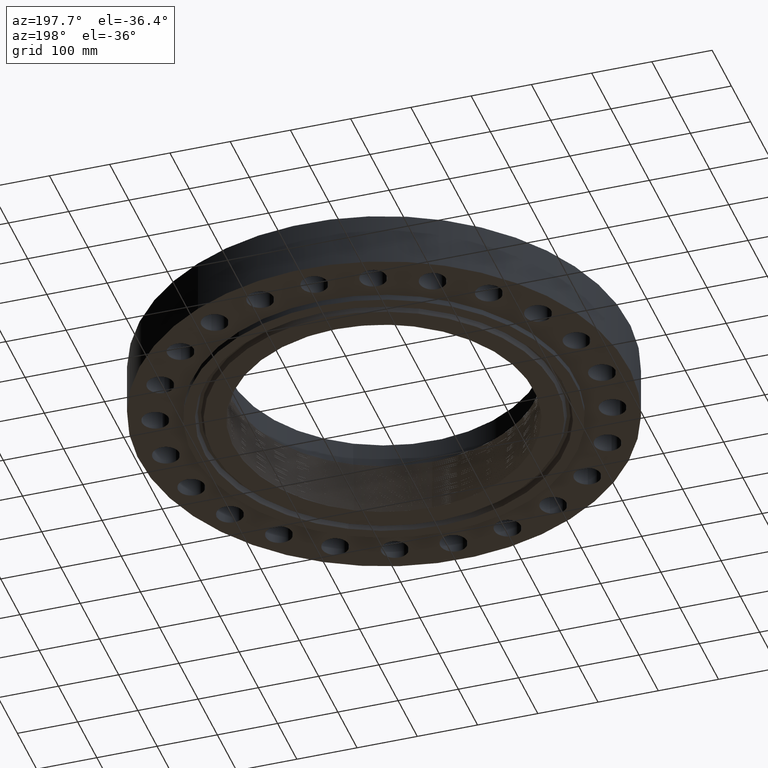
[diagram: clean part render]
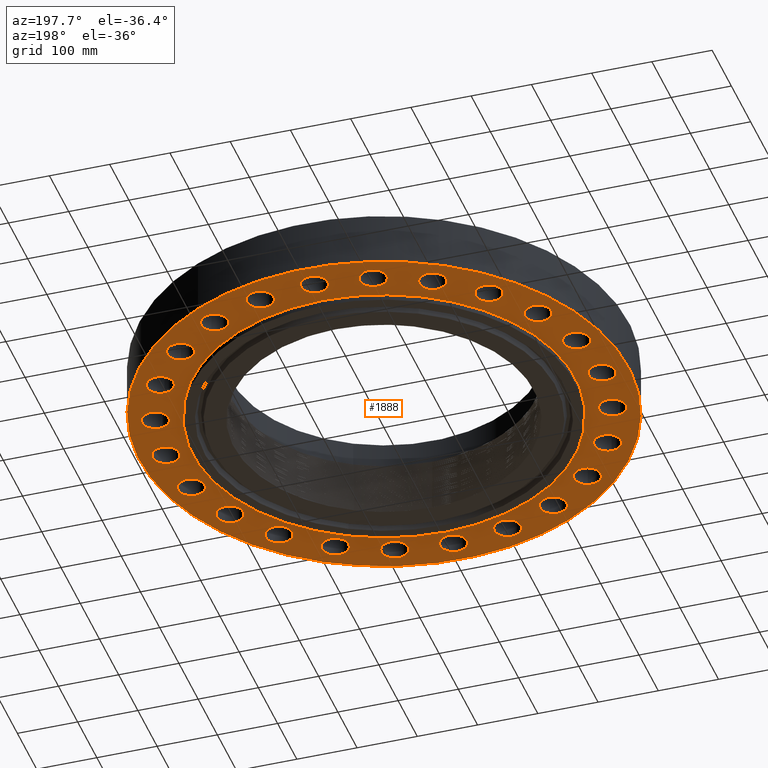
[diagram: same view with one face highlighted and labeled with its STEP entity id]
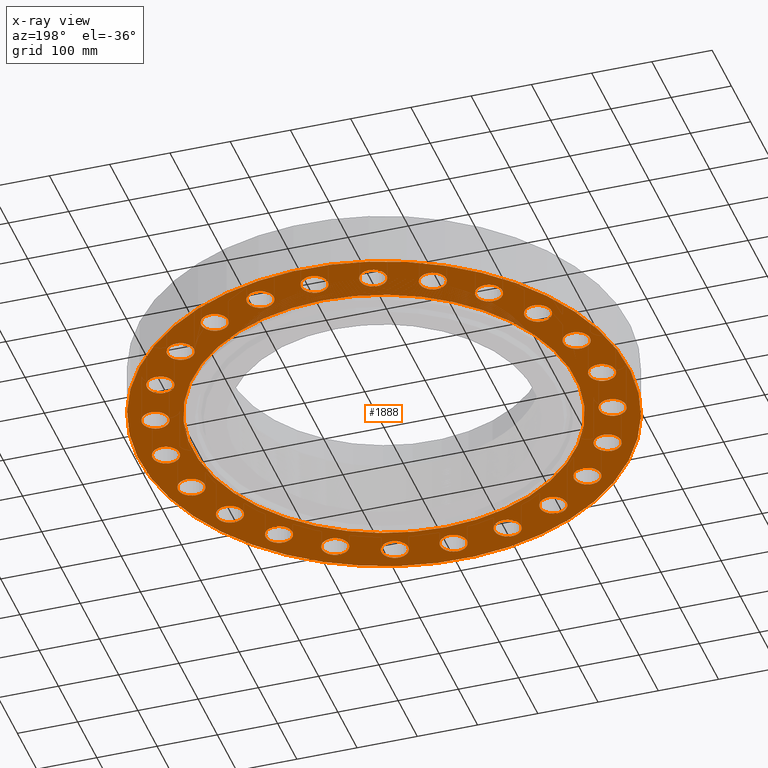
[diagram: x-ray of the same camera — body ghosted, the highlighted face saturated]
A machine part, auxiliary view. The second image highlights one B-rep face of the part: STEP entity #1888.
The next image is the same camera in x-ray: the body ghosted, the highlighted face saturated — about 0% of this face is hidden behind the body in this view.
In plain terms, the highlighted planar face has unit normal (0, 0, -1).
Its self-contained STEP definition (entity closure, byte-faithful):
#442=AXIS2_PLACEMENT_3D('Circle Axis2P3D',#440,#441,$) ;
#468=AXIS2_PLACEMENT_3D('Circle Axis2P3D',#466,#467,$) ;
#499=AXIS2_PLACEMENT_3D('Circle Axis2P3D',#497,#498,$) ;
#525=AXIS2_PLACEMENT_3D('Circle Axis2P3D',#523,#524,$) ;
#556=AXIS2_PLACEMENT_3D('Circle Axis2P3D',#554,#555,$) ;
#582=AXIS2_PLACEMENT_3D('Circle Axis2P3D',#580,#581,$) ;
#613=AXIS2_PLACEMENT_3D('Circle Axis2P3D',#611,#612,$) ;
#639=AXIS2_PLACEMENT_3D('Circle Axis2P3D',#637,#638,$) ;
#670=AXIS2_PLACEMENT_3D('Circle Axis2P3D',#668,#669,$) ;
#696=AXIS2_PLACEMENT_3D('Circle Axis2P3D',#694,#695,$) ;
#727=AXIS2_PLACEMENT_3D('Circle Axis2P3D',#725,#726,$) ;
#753=AXIS2_PLACEMENT_3D('Circle Axis2P3D',#751,#752,$) ;
#784=AXIS2_PLACEMENT_3D('Circle Axis2P3D',#782,#783,$) ;
#810=AXIS2_PLACEMENT_3D('Circle Axis2P3D',#808,#809,$) ;
#841=AXIS2_PLACEMENT_3D('Circle Axis2P3D',#839,#840,$) ;
#867=AXIS2_PLACEMENT_3D('Circle Axis2P3D',#865,#866,$) ;
#898=AXIS2_PLACEMENT_3D('Circle Axis2P3D',#896,#897,$) ;
#924=AXIS2_PLACEMENT_3D('Circle Axis2P3D',#922,#923,$) ;
#955=AXIS2_PLACEMENT_3D('Circle Axis2P3D',#953,#954,$) ;
#981=AXIS2_PLACEMENT_3D('Circle Axis2P3D',#979,#980,$) ;
#1012=AXIS2_PLACEMENT_3D('Circle Axis2P3D',#1010,#1011,$) ;
#1038=AXIS2_PLACEMENT_3D('Circle Axis2P3D',#1036,#1037,$) ;
#1069=AXIS2_PLACEMENT_3D('Circle Axis2P3D',#1067,#1068,$) ;
#1095=AXIS2_PLACEMENT_3D('Circle Axis2P3D',#1093,#1094,$) ;
#1126=AXIS2_PLACEMENT_3D('Circle Axis2P3D',#1124,#1125,$) ;
#1152=AXIS2_PLACEMENT_3D('Circle Axis2P3D',#1150,#1151,$) ;
#1183=AXIS2_PLACEMENT_3D('Circle Axis2P3D',#1181,#1182,$) ;
#1209=AXIS2_PLACEMENT_3D('Circle Axis2P3D',#1207,#1208,$) ;
#1240=AXIS2_PLACEMENT_3D('Circle Axis2P3D',#1238,#1239,$) ;
#1266=AXIS2_PLACEMENT_3D('Circle Axis2P3D',#1264,#1265,$) ;
#1297=AXIS2_PLACEMENT_3D('Circle Axis2P3D',#1295,#1296,$) ;
#1323=AXIS2_PLACEMENT_3D('Circle Axis2P3D',#1321,#1322,$) ;
#1354=AXIS2_PLACEMENT_3D('Circle Axis2P3D',#1352,#1353,$) ;
#1380=AXIS2_PLACEMENT_3D('Circle Axis2P3D',#1378,#1379,$) ;
#1411=AXIS2_PLACEMENT_3D('Circle Axis2P3D',#1409,#1410,$) ;
#1437=AXIS2_PLACEMENT_3D('Circle Axis2P3D',#1435,#1436,$) ;
#1468=AXIS2_PLACEMENT_3D('Circle Axis2P3D',#1466,#1467,$) ;
#1494=AXIS2_PLACEMENT_3D('Circle Axis2P3D',#1492,#1493,$) ;
#1525=AXIS2_PLACEMENT_3D('Circle Axis2P3D',#1523,#1524,$) ;
#1551=AXIS2_PLACEMENT_3D('Circle Axis2P3D',#1549,#1550,$) ;
#1582=AXIS2_PLACEMENT_3D('Circle Axis2P3D',#1580,#1581,$) ;
#1608=AXIS2_PLACEMENT_3D('Circle Axis2P3D',#1606,#1607,$) ;
#1639=AXIS2_PLACEMENT_3D('Circle Axis2P3D',#1637,#1638,$) ;
#1665=AXIS2_PLACEMENT_3D('Circle Axis2P3D',#1663,#1664,$) ;
#1696=AXIS2_PLACEMENT_3D('Circle Axis2P3D',#1694,#1695,$) ;
#1722=AXIS2_PLACEMENT_3D('Circle Axis2P3D',#1720,#1721,$) ;
#1740=AXIS2_PLACEMENT_3D('Plane Axis2P3D',#1737,#1738,#1739) ;
#1744=AXIS2_PLACEMENT_3D('Circle Axis2P3D',#1742,#1743,$) ;
#1753=AXIS2_PLACEMENT_3D('Circle Axis2P3D',#1751,#1752,$) ;
#1762=AXIS2_PLACEMENT_3D('Circle Axis2P3D',#1760,#1761,$) ;
#1771=AXIS2_PLACEMENT_3D('Circle Axis2P3D',#1769,#1770,$) ;
#1780=AXIS2_PLACEMENT_3D('Circle Axis2P3D',#1778,#1779,$) ;
#1789=AXIS2_PLACEMENT_3D('Circle Axis2P3D',#1787,#1788,$) ;
#435=CARTESIAN_POINT('Vertex',(4.32131719372,13.1604965083,0.)) ;
#440=CARTESIAN_POINT('Axis2P3D Location',(3.68817139273,13.7644430247,0.)) ;
#444=CARTESIAN_POINT('Vertex',(3.05502559173,14.3683895411,0.)) ;
#466=CARTESIAN_POINT('Axis2P3D Location',(3.68817139273,13.7644430247,0.)) ;
#492=CARTESIAN_POINT('Vertex',(-0.767884741657,-13.8305026538,0.)) ;
#497=CARTESIAN_POINT('Axis2P3D Location',(1.74512168879E-015,-14.2500000001,0.)) ;
#501=CARTESIAN_POINT('Vertex',(0.767884741657,-14.6694973463,0.)) ;
#523=CARTESIAN_POINT('Axis2P3D Location',(1.74512168879E-015,-14.2500000001,0.)) ;
#549=CARTESIAN_POINT('Vertex',(-2.83787778656,13.5579828994,0.)) ;
#554=CARTESIAN_POINT('Axis2P3D Location',(-3.68817139273,13.7644430247,0.)) ;
#558=CARTESIAN_POINT('Vertex',(-4.53846499889,13.9709031499,0.)) ;
#580=CARTESIAN_POINT('Axis2P3D Location',(-3.68817139273,13.7644430247,0.)) ;
#606=CARTESIAN_POINT('Vertex',(2.83787778656,-13.5579828994,0.)) ;
#611=CARTESIAN_POINT('Axis2P3D Location',(3.68817139273,-13.7644430247,0.)) ;
#615=CARTESIAN_POINT('Vertex',(4.53846499889,-13.9709031499,0.)) ;
#637=CARTESIAN_POINT('Axis2P3D Location',(3.68817139273,-13.7644430247,0.)) ;
#663=CARTESIAN_POINT('Vertex',(-6.25024363343,12.3615090161,0.)) ;
#668=CARTESIAN_POINT('Axis2P3D Location',(-7.12500000003,12.340862004,0.)) ;
#672=CARTESIAN_POINT('Vertex',(-7.99975636662,12.3202149918,0.)) ;
#694=CARTESIAN_POINT('Axis2P3D Location',(-7.12500000003,12.340862004,0.)) ;
#720=CARTESIAN_POINT('Vertex',(6.25024363343,-12.3615090161,0.)) ;
#725=CARTESIAN_POINT('Axis2P3D Location',(7.12500000003,-12.340862004,0.)) ;
#729=CARTESIAN_POINT('Vertex',(7.99975636662,-12.3202149918,0.)) ;
#751=CARTESIAN_POINT('Axis2P3D Location',(7.12500000003,-12.340862004,0.)) ;
#777=CARTESIAN_POINT('Vertex',(-9.23666570571,10.3226187217,0.)) ;
#782=CARTESIAN_POINT('Axis2P3D Location',(-10.0762716319,10.0762716319,0.)) ;
#786=CARTESIAN_POINT('Vertex',(-10.9158775582,9.8299245422,0.)) ;
#808=CARTESIAN_POINT('Axis2P3D Location',(-10.0762716319,10.0762716319,0.)) ;
#834=CARTESIAN_POINT('Vertex',(9.23666570571,-10.3226187217,0.)) ;
#839=CARTESIAN_POINT('Axis2P3D Location',(10.0762716319,-10.0762716319,0.)) ;
#843=CARTESIAN_POINT('Vertex',(10.9158775582,-9.8299245422,0.)) ;
#865=CARTESIAN_POINT('Axis2P3D Location',(10.0762716319,-10.0762716319,0.)) ;
#891=CARTESIAN_POINT('Vertex',(-11.5936242745,7.58025902034,0.)) ;
#896=CARTESIAN_POINT('Axis2P3D Location',(-12.340862004,7.12500000003,0.)) ;
#900=CARTESIAN_POINT('Vertex',(-13.0880997335,6.66974097972,0.)) ;
#922=CARTESIAN_POINT('Axis2P3D Location',(-12.340862004,7.12500000003,0.)) ;
#948=CARTESIAN_POINT('Vertex',(11.5936242745,-7.58025902034,-3.35689481461E-015)) ;
#953=CARTESIAN_POINT('Axis2P3D Location',(12.340862004,-7.12500000003,-3.35689481461E-015)) ;
#957=CARTESIAN_POINT('Vertex',(13.0880997335,-6.66974097972,0.)) ;
#979=CARTESIAN_POINT('Axis2P3D Location',(12.340862004,-7.12500000003,-3.35689481461E-015)) ;
#1005=CARTESIAN_POINT('Vertex',(-13.1604965083,4.32131719372,0.)) ;
#1010=CARTESIAN_POINT('Axis2P3D Location',(-13.7644430247,3.68817139273,0.)) ;
#1014=CARTESIAN_POINT('Vertex',(-14.3683895411,3.05502559173,0.)) ;
#1036=CARTESIAN_POINT('Axis2P3D Location',(-13.7644430247,3.68817139273,0.)) ;
#1062=CARTESIAN_POINT('Vertex',(13.1604965083,-4.32131719372,-1.1189649382E-015)) ;
#1067=CARTESIAN_POINT('Axis2P3D Location',(13.7644430247,-3.68817139273,-1.1189649382E-015)) ;
#1071=CARTESIAN_POINT('Vertex',(14.3683895411,-3.05502559173,0.)) ;
#1093=CARTESIAN_POINT('Axis2P3D Location',(13.7644430247,-3.68817139273,-1.1189649382E-015)) ;
#1119=CARTESIAN_POINT('Vertex',(-13.8305026538,0.767884741657,0.)) ;
#1124=CARTESIAN_POINT('Axis2P3D Location',(-14.2500000001,-2.61768253319E-015,0.)) ;
#1128=CARTESIAN_POINT('Vertex',(-14.6694973463,-0.767884741657,0.)) ;
#1150=CARTESIAN_POINT('Axis2P3D Location',(-14.2500000001,-2.61768253319E-015,0.)) ;
#1176=CARTESIAN_POINT('Vertex',(13.8305026538,-0.767884741657,0.)) ;
#1181=CARTESIAN_POINT('Axis2P3D Location',(14.2500000001,-1.36536903201E-015,0.)) ;
#1185=CARTESIAN_POINT('Vertex',(14.6694973463,0.767884741657,0.)) ;
#1207=CARTESIAN_POINT('Axis2P3D Location',(14.2500000001,-1.36536903201E-015,0.)) ;
#1233=CARTESIAN_POINT('Vertex',(-13.5579828994,-2.83787778656,0.)) ;
#1238=CARTESIAN_POINT('Axis2P3D Location',(-13.7644430247,-3.68817139273,0.)) ;
#1242=CARTESIAN_POINT('Vertex',(-13.9709031499,-4.53846499889,0.)) ;
#1264=CARTESIAN_POINT('Axis2P3D Location',(-13.7644430247,-3.68817139273,0.)) ;
#1290=CARTESIAN_POINT('Vertex',(13.5579828994,2.83787778656,0.)) ;
#1295=CARTESIAN_POINT('Axis2P3D Location',(13.7644430247,3.68817139273,0.)) ;
#1299=CARTESIAN_POINT('Vertex',(13.9709031499,4.53846499889,0.)) ;
#1321=CARTESIAN_POINT('Axis2P3D Location',(13.7644430247,3.68817139273,0.)) ;
#1347=CARTESIAN_POINT('Vertex',(-12.3615090161,-6.25024363343,0.)) ;
#1352=CARTESIAN_POINT('Axis2P3D Location',(-12.340862004,-7.12500000003,0.)) ;
#1356=CARTESIAN_POINT('Vertex',(-12.3202149918,-7.99975636662,0.)) ;
#1378=CARTESIAN_POINT('Axis2P3D Location',(-12.340862004,-7.12500000003,0.)) ;
#1404=CARTESIAN_POINT('Vertex',(12.3615090161,6.25024363343,0.)) ;
#1409=CARTESIAN_POINT('Axis2P3D Location',(12.340862004,7.12500000003,0.)) ;
#1413=CARTESIAN_POINT('Vertex',(12.3202149918,7.99975636662,0.)) ;
#1435=CARTESIAN_POINT('Axis2P3D Location',(12.340862004,7.12500000003,0.)) ;
#1461=CARTESIAN_POINT('Vertex',(-10.3226187217,-9.23666570571,0.)) ;
#1466=CARTESIAN_POINT('Axis2P3D Location',(-10.0762716319,-10.0762716319,0.)) ;
#1470=CARTESIAN_POINT('Vertex',(-9.8299245422,-10.9158775582,0.)) ;
#1492=CARTESIAN_POINT('Axis2P3D Location',(-10.0762716319,-10.0762716319,0.)) ;
#1518=CARTESIAN_POINT('Vertex',(10.3226187217,9.23666570571,0.)) ;
#1523=CARTESIAN_POINT('Axis2P3D Location',(10.0762716319,10.0762716319,0.)) ;
#1527=CARTESIAN_POINT('Vertex',(9.8299245422,10.9158775582,0.)) ;
#1549=CARTESIAN_POINT('Axis2P3D Location',(10.0762716319,10.0762716319,0.)) ;
#1575=CARTESIAN_POINT('Vertex',(-7.58025902034,-11.5936242745,0.)) ;
#1580=CARTESIAN_POINT('Axis2P3D Location',(-7.12500000003,-12.340862004,0.)) ;
#1584=CARTESIAN_POINT('Vertex',(-6.66974097972,-13.0880997335,0.)) ;
#1606=CARTESIAN_POINT('Axis2P3D Location',(-7.12500000003,-12.340862004,0.)) ;
#1632=CARTESIAN_POINT('Vertex',(7.58025902034,11.5936242745,0.)) ;
#1637=CARTESIAN_POINT('Axis2P3D Location',(7.12500000003,12.340862004,0.)) ;
#1641=CARTESIAN_POINT('Vertex',(6.66974097972,13.0880997335,0.)) ;
#1663=CARTESIAN_POINT('Axis2P3D Location',(7.12500000003,12.340862004,0.)) ;
#1689=CARTESIAN_POINT('Vertex',(-4.32131719372,-13.1604965083,0.)) ;
#1694=CARTESIAN_POINT('Axis2P3D Location',(-3.68817139273,-13.7644430247,0.)) ;
#1698=CARTESIAN_POINT('Vertex',(-3.05502559173,-14.3683895411,0.)) ;
#1720=CARTESIAN_POINT('Axis2P3D Location',(-3.68817139273,-13.7644430247,0.)) ;
#1737=CARTESIAN_POINT('Axis2P3D Location',(0.,12.5000000001,0.)) ;
#1742=CARTESIAN_POINT('Axis2P3D Location',(0.,0.,0.)) ;
#1746=CARTESIAN_POINT('Vertex',(-7.6708086177,-14.0413209903,2.51767111096E-015)) ;
#1748=CARTESIAN_POINT('Vertex',(7.6708086177,14.0413209903,2.51767111096E-015)) ;
#1751=CARTESIAN_POINT('Axis2P3D Location',(0.,0.,0.)) ;
#1760=CARTESIAN_POINT('Axis2P3D Location',(-1.39870617276E-016,14.2500000001,0.)) ;
#1764=CARTESIAN_POINT('Vertex',(0.767884741657,13.8305026538,0.)) ;
#1766=CARTESIAN_POINT('Vertex',(-0.767884741657,14.6694973463,0.)) ;
#1769=CARTESIAN_POINT('Axis2P3D Location',(4.54579506146E-016,14.2500000001,0.)) ;
#1778=CARTESIAN_POINT('Axis2P3D Location',(0.,0.,0.)) ;
#1782=CARTESIAN_POINT('Vertex',(5.99281923258,10.9697820237,1.39870617276E-015)) ;
#1784=CARTESIAN_POINT('Vertex',(-5.99281923258,-10.9697820237,1.39870617276E-015)) ;
#1787=CARTESIAN_POINT('Axis2P3D Location',(0.,0.,0.)) ;
#441=DIRECTION('Axis2P3D Direction',(0.,-0.,-0.0393700787402)) ;
#467=DIRECTION('Axis2P3D Direction',(0.,-0.,-0.0393700787402)) ;
#498=DIRECTION('Axis2P3D Direction',(-0.,0.,-0.0393700787402)) ;
#524=DIRECTION('Axis2P3D Direction',(-0.,0.,-0.0393700787402)) ;
#555=DIRECTION('Axis2P3D Direction',(0.,0.,-0.0393700787402)) ;
#581=DIRECTION('Axis2P3D Direction',(0.,0.,-0.0393700787402)) ;
#612=DIRECTION('Axis2P3D Direction',(-0.,0.,-0.0393700787402)) ;
#638=DIRECTION('Axis2P3D Direction',(-0.,0.,-0.0393700787402)) ;
#669=DIRECTION('Axis2P3D Direction',(0.,0.,-0.0393700787402)) ;
#695=DIRECTION('Axis2P3D Direction',(0.,0.,-0.0393700787402)) ;
#726=DIRECTION('Axis2P3D Direction',(-0.,0.,-0.0393700787402)) ;
#752=DIRECTION('Axis2P3D Direction',(-0.,0.,-0.0393700787402)) ;
#783=DIRECTION('Axis2P3D Direction',(0.,0.,-0.0393700787402)) ;
#809=DIRECTION('Axis2P3D Direction',(0.,0.,-0.0393700787402)) ;
#840=DIRECTION('Axis2P3D Direction',(-0.,0.,-0.0393700787402)) ;
#866=DIRECTION('Axis2P3D Direction',(-0.,0.,-0.0393700787402)) ;
#897=DIRECTION('Axis2P3D Direction',(0.,0.,-0.0393700787402)) ;
#923=DIRECTION('Axis2P3D Direction',(0.,0.,-0.0393700787402)) ;
#954=DIRECTION('Axis2P3D Direction',(-0.,0.,-0.0393700787402)) ;
#980=DIRECTION('Axis2P3D Direction',(-0.,0.,-0.0393700787402)) ;
#1011=DIRECTION('Axis2P3D Direction',(0.,0.,-0.0393700787402)) ;
#1037=DIRECTION('Axis2P3D Direction',(0.,0.,-0.0393700787402)) ;
#1068=DIRECTION('Axis2P3D Direction',(-0.,0.,-0.0393700787402)) ;
#1094=DIRECTION('Axis2P3D Direction',(-0.,0.,-0.0393700787402)) ;
#1125=DIRECTION('Axis2P3D Direction',(0.,0.,-0.0393700787402)) ;
#1151=DIRECTION('Axis2P3D Direction',(0.,0.,-0.0393700787402)) ;
#1182=DIRECTION('Axis2P3D Direction',(0.,-0.,-0.0393700787402)) ;
#1208=DIRECTION('Axis2P3D Direction',(0.,-0.,-0.0393700787402)) ;
#1239=DIRECTION('Axis2P3D Direction',(0.,0.,-0.0393700787402)) ;
#1265=DIRECTION('Axis2P3D Direction',(0.,0.,-0.0393700787402)) ;
#1296=DIRECTION('Axis2P3D Direction',(0.,-0.,-0.0393700787402)) ;
#1322=DIRECTION('Axis2P3D Direction',(0.,-0.,-0.0393700787402)) ;
#1353=DIRECTION('Axis2P3D Direction',(0.,0.,-0.0393700787402)) ;
#1379=DIRECTION('Axis2P3D Direction',(0.,0.,-0.0393700787402)) ;
#1410=DIRECTION('Axis2P3D Direction',(0.,-0.,-0.0393700787402)) ;
#1436=DIRECTION('Axis2P3D Direction',(0.,-0.,-0.0393700787402)) ;
#1467=DIRECTION('Axis2P3D Direction',(0.,0.,-0.0393700787402)) ;
#1493=DIRECTION('Axis2P3D Direction',(0.,0.,-0.0393700787402)) ;
#1524=DIRECTION('Axis2P3D Direction',(0.,-0.,-0.0393700787402)) ;
#1550=DIRECTION('Axis2P3D Direction',(0.,-0.,-0.0393700787402)) ;
#1581=DIRECTION('Axis2P3D Direction',(0.,0.,-0.0393700787402)) ;
#1607=DIRECTION('Axis2P3D Direction',(0.,0.,-0.0393700787402)) ;
#1638=DIRECTION('Axis2P3D Direction',(0.,-0.,-0.0393700787402)) ;
#1664=DIRECTION('Axis2P3D Direction',(0.,-0.,-0.0393700787402)) ;
#1695=DIRECTION('Axis2P3D Direction',(0.,0.,-0.0393700787402)) ;
#1721=DIRECTION('Axis2P3D Direction',(0.,0.,-0.0393700787402)) ;
#1738=DIRECTION('Axis2P3D Direction',(0.,0.,-0.0393700787402)) ;
#1739=DIRECTION('Axis2P3D XDirection',(0.0393700787402,0.,0.)) ;
#1743=DIRECTION('Axis2P3D Direction',(0.,0.,-0.0393700787402)) ;
#1752=DIRECTION('Axis2P3D Direction',(0.,0.,-0.0393700787402)) ;
#1761=DIRECTION('Axis2P3D Direction',(0.,0.,-0.0393700787402)) ;
#1770=DIRECTION('Axis2P3D Direction',(0.,0.,-0.0393700787402)) ;
#1779=DIRECTION('Axis2P3D Direction',(0.,0.,-0.0393700787402)) ;
#1788=DIRECTION('Axis2P3D Direction',(0.,0.,-0.0393700787402)) ;
#1757=ORIENTED_EDGE('',*,*,#1750,.T.) ;
#1758=ORIENTED_EDGE('',*,*,#1755,.T.) ;
#1775=ORIENTED_EDGE('',*,*,#1768,.F.) ;
#1776=ORIENTED_EDGE('',*,*,#1773,.F.) ;
#1793=ORIENTED_EDGE('',*,*,#1786,.F.) ;
#1794=ORIENTED_EDGE('',*,*,#1791,.F.) ;
#1797=ORIENTED_EDGE('',*,*,#470,.F.) ;
#1798=ORIENTED_EDGE('',*,*,#446,.F.) ;
#1801=ORIENTED_EDGE('',*,*,#1667,.F.) ;
#1802=ORIENTED_EDGE('',*,*,#1643,.F.) ;
#1805=ORIENTED_EDGE('',*,*,#1553,.F.) ;
#1806=ORIENTED_EDGE('',*,*,#1529,.F.) ;
#1809=ORIENTED_EDGE('',*,*,#1439,.F.) ;
#1810=ORIENTED_EDGE('',*,*,#1415,.F.) ;
#1813=ORIENTED_EDGE('',*,*,#1325,.F.) ;
#1814=ORIENTED_EDGE('',*,*,#1301,.F.) ;
#1817=ORIENTED_EDGE('',*,*,#1211,.F.) ;
#1818=ORIENTED_EDGE('',*,*,#1187,.F.) ;
#1821=ORIENTED_EDGE('',*,*,#1097,.F.) ;
#1822=ORIENTED_EDGE('',*,*,#1073,.F.) ;
#1825=ORIENTED_EDGE('',*,*,#983,.F.) ;
#1826=ORIENTED_EDGE('',*,*,#959,.F.) ;
#1829=ORIENTED_EDGE('',*,*,#869,.F.) ;
#1830=ORIENTED_EDGE('',*,*,#845,.F.) ;
#1833=ORIENTED_EDGE('',*,*,#755,.F.) ;
#1834=ORIENTED_EDGE('',*,*,#731,.F.) ;
#1837=ORIENTED_EDGE('',*,*,#641,.F.) ;
#1838=ORIENTED_EDGE('',*,*,#617,.F.) ;
#1841=ORIENTED_EDGE('',*,*,#527,.F.) ;
#1842=ORIENTED_EDGE('',*,*,#503,.F.) ;
#1845=ORIENTED_EDGE('',*,*,#1724,.F.) ;
#1846=ORIENTED_EDGE('',*,*,#1700,.F.) ;
#1849=ORIENTED_EDGE('',*,*,#1610,.F.) ;
#1850=ORIENTED_EDGE('',*,*,#1586,.F.) ;
#1853=ORIENTED_EDGE('',*,*,#1496,.F.) ;
#1854=ORIENTED_EDGE('',*,*,#1472,.F.) ;
#1857=ORIENTED_EDGE('',*,*,#1382,.F.) ;
#1858=ORIENTED_EDGE('',*,*,#1358,.F.) ;
#1861=ORIENTED_EDGE('',*,*,#1268,.F.) ;
#1862=ORIENTED_EDGE('',*,*,#1244,.F.) ;
#1865=ORIENTED_EDGE('',*,*,#1154,.F.) ;
#1866=ORIENTED_EDGE('',*,*,#1130,.F.) ;
#1869=ORIENTED_EDGE('',*,*,#1040,.F.) ;
#1870=ORIENTED_EDGE('',*,*,#1016,.F.) ;
#1873=ORIENTED_EDGE('',*,*,#926,.F.) ;
#1874=ORIENTED_EDGE('',*,*,#902,.F.) ;
#1877=ORIENTED_EDGE('',*,*,#812,.F.) ;
#1878=ORIENTED_EDGE('',*,*,#788,.F.) ;
#1881=ORIENTED_EDGE('',*,*,#698,.F.) ;
#1882=ORIENTED_EDGE('',*,*,#674,.F.) ;
#1885=ORIENTED_EDGE('',*,*,#584,.F.) ;
#1886=ORIENTED_EDGE('',*,*,#560,.F.) ;
#1777=FACE_BOUND('',#1774,.T.) ;
#1795=FACE_BOUND('',#1792,.T.) ;
#1799=FACE_BOUND('',#1796,.T.) ;
#1803=FACE_BOUND('',#1800,.T.) ;
#1807=FACE_BOUND('',#1804,.T.) ;
#1811=FACE_BOUND('',#1808,.T.) ;
#1815=FACE_BOUND('',#1812,.T.) ;
#1819=FACE_BOUND('',#1816,.T.) ;
#1823=FACE_BOUND('',#1820,.T.) ;
#1827=FACE_BOUND('',#1824,.T.) ;
#1831=FACE_BOUND('',#1828,.T.) ;
#1835=FACE_BOUND('',#1832,.T.) ;
#1839=FACE_BOUND('',#1836,.T.) ;
#1843=FACE_BOUND('',#1840,.T.) ;
#1847=FACE_BOUND('',#1844,.T.) ;
#1851=FACE_BOUND('',#1848,.T.) ;
#1855=FACE_BOUND('',#1852,.T.) ;
#1859=FACE_BOUND('',#1856,.T.) ;
#1863=FACE_BOUND('',#1860,.T.) ;
#1867=FACE_BOUND('',#1864,.T.) ;
#1871=FACE_BOUND('',#1868,.T.) ;
#1875=FACE_BOUND('',#1872,.T.) ;
#1879=FACE_BOUND('',#1876,.T.) ;
#1883=FACE_BOUND('',#1880,.T.) ;
#1887=FACE_BOUND('',#1884,.T.) ;
#1888=ADVANCED_FACE('PartBody',(#1759,#1777,#1795,#1799,#1803,#1807,#1811,#1815,#1819,#1823,#1827,#1831,#1835,#1839,#1843,#1847,#1851,#1855,#1859,#1863,#1867,#1871,#1875,#1879,#1883,#1887),#1741,.T.) ;
#443=CIRCLE('generated circle',#442,0.875000000004) ;
#469=CIRCLE('generated circle',#468,0.875000000004) ;
#500=CIRCLE('generated circle',#499,0.875000000004) ;
#526=CIRCLE('generated circle',#525,0.875000000004) ;
#557=CIRCLE('generated circle',#556,0.875000000004) ;
#583=CIRCLE('generated circle',#582,0.875000000004) ;
#614=CIRCLE('generated circle',#613,0.875000000004) ;
#640=CIRCLE('generated circle',#639,0.875000000004) ;
#671=CIRCLE('generated circle',#670,0.875000000003) ;
#697=CIRCLE('generated circle',#696,0.875000000003) ;
#728=CIRCLE('generated circle',#727,0.875000000004) ;
#754=CIRCLE('generated circle',#753,0.875000000004) ;
#785=CIRCLE('generated circle',#784,0.875000000004) ;
#811=CIRCLE('generated circle',#810,0.875000000004) ;
#842=CIRCLE('generated circle',#841,0.875000000003) ;
#868=CIRCLE('generated circle',#867,0.875000000003) ;
#899=CIRCLE('generated circle',#898,0.875000000003) ;
#925=CIRCLE('generated circle',#924,0.875000000003) ;
#956=CIRCLE('generated circle',#955,0.875000000004) ;
#982=CIRCLE('generated circle',#981,0.875000000004) ;
#1013=CIRCLE('generated circle',#1012,0.875000000004) ;
#1039=CIRCLE('generated circle',#1038,0.875000000004) ;
#1070=CIRCLE('generated circle',#1069,0.875000000004) ;
#1096=CIRCLE('generated circle',#1095,0.875000000004) ;
#1127=CIRCLE('generated circle',#1126,0.875000000004) ;
#1153=CIRCLE('generated circle',#1152,0.875000000004) ;
#1184=CIRCLE('generated circle',#1183,0.875000000004) ;
#1210=CIRCLE('generated circle',#1209,0.875000000004) ;
#1241=CIRCLE('generated circle',#1240,0.875000000004) ;
#1267=CIRCLE('generated circle',#1266,0.875000000004) ;
#1298=CIRCLE('generated circle',#1297,0.875000000004) ;
#1324=CIRCLE('generated circle',#1323,0.875000000004) ;
#1355=CIRCLE('generated circle',#1354,0.875000000003) ;
#1381=CIRCLE('generated circle',#1380,0.875000000003) ;
#1412=CIRCLE('generated circle',#1411,0.875000000003) ;
#1438=CIRCLE('generated circle',#1437,0.875000000003) ;
#1469=CIRCLE('generated circle',#1468,0.875000000003) ;
#1495=CIRCLE('generated circle',#1494,0.875000000003) ;
#1526=CIRCLE('generated circle',#1525,0.875000000003) ;
#1552=CIRCLE('generated circle',#1551,0.875000000003) ;
#1583=CIRCLE('generated circle',#1582,0.875000000003) ;
#1609=CIRCLE('generated circle',#1608,0.875000000003) ;
#1640=CIRCLE('generated circle',#1639,0.875000000004) ;
#1666=CIRCLE('generated circle',#1665,0.875000000004) ;
#1697=CIRCLE('generated circle',#1696,0.875000000004) ;
#1723=CIRCLE('generated circle',#1722,0.875000000004) ;
#1745=CIRCLE('generated circle',#1744,16.0000000001) ;
#1754=CIRCLE('generated circle',#1753,16.0000000001) ;
#1763=CIRCLE('generated circle',#1762,0.875000000004) ;
#1772=CIRCLE('generated circle',#1771,0.875000000004) ;
#1781=CIRCLE('generated circle',#1780,12.5000000001) ;
#1790=CIRCLE('generated circle',#1789,12.5000000001) ;
#446=EDGE_CURVE('',#436,#445,#443,.T.) ;
#470=EDGE_CURVE('',#445,#436,#469,.T.) ;
#503=EDGE_CURVE('',#493,#502,#500,.T.) ;
#527=EDGE_CURVE('',#502,#493,#526,.T.) ;
#560=EDGE_CURVE('',#550,#559,#557,.T.) ;
#584=EDGE_CURVE('',#559,#550,#583,.T.) ;
#617=EDGE_CURVE('',#607,#616,#614,.T.) ;
#641=EDGE_CURVE('',#616,#607,#640,.T.) ;
#674=EDGE_CURVE('',#664,#673,#671,.T.) ;
#698=EDGE_CURVE('',#673,#664,#697,.T.) ;
#731=EDGE_CURVE('',#721,#730,#728,.T.) ;
#755=EDGE_CURVE('',#730,#721,#754,.T.) ;
#788=EDGE_CURVE('',#778,#787,#785,.T.) ;
#812=EDGE_CURVE('',#787,#778,#811,.T.) ;
#845=EDGE_CURVE('',#835,#844,#842,.T.) ;
#869=EDGE_CURVE('',#844,#835,#868,.T.) ;
#902=EDGE_CURVE('',#892,#901,#899,.T.) ;
#926=EDGE_CURVE('',#901,#892,#925,.T.) ;
#959=EDGE_CURVE('',#949,#958,#956,.T.) ;
#983=EDGE_CURVE('',#958,#949,#982,.T.) ;
#1016=EDGE_CURVE('',#1006,#1015,#1013,.T.) ;
#1040=EDGE_CURVE('',#1015,#1006,#1039,.T.) ;
#1073=EDGE_CURVE('',#1063,#1072,#1070,.T.) ;
#1097=EDGE_CURVE('',#1072,#1063,#1096,.T.) ;
#1130=EDGE_CURVE('',#1120,#1129,#1127,.T.) ;
#1154=EDGE_CURVE('',#1129,#1120,#1153,.T.) ;
#1187=EDGE_CURVE('',#1177,#1186,#1184,.T.) ;
#1211=EDGE_CURVE('',#1186,#1177,#1210,.T.) ;
#1244=EDGE_CURVE('',#1234,#1243,#1241,.T.) ;
#1268=EDGE_CURVE('',#1243,#1234,#1267,.T.) ;
#1301=EDGE_CURVE('',#1291,#1300,#1298,.T.) ;
#1325=EDGE_CURVE('',#1300,#1291,#1324,.T.) ;
#1358=EDGE_CURVE('',#1348,#1357,#1355,.T.) ;
#1382=EDGE_CURVE('',#1357,#1348,#1381,.T.) ;
#1415=EDGE_CURVE('',#1405,#1414,#1412,.T.) ;
#1439=EDGE_CURVE('',#1414,#1405,#1438,.T.) ;
#1472=EDGE_CURVE('',#1462,#1471,#1469,.T.) ;
#1496=EDGE_CURVE('',#1471,#1462,#1495,.T.) ;
#1529=EDGE_CURVE('',#1519,#1528,#1526,.T.) ;
#1553=EDGE_CURVE('',#1528,#1519,#1552,.T.) ;
#1586=EDGE_CURVE('',#1576,#1585,#1583,.T.) ;
#1610=EDGE_CURVE('',#1585,#1576,#1609,.T.) ;
#1643=EDGE_CURVE('',#1633,#1642,#1640,.T.) ;
#1667=EDGE_CURVE('',#1642,#1633,#1666,.T.) ;
#1700=EDGE_CURVE('',#1690,#1699,#1697,.T.) ;
#1724=EDGE_CURVE('',#1699,#1690,#1723,.T.) ;
#1750=EDGE_CURVE('',#1747,#1749,#1745,.T.) ;
#1755=EDGE_CURVE('',#1749,#1747,#1754,.T.) ;
#1768=EDGE_CURVE('',#1765,#1767,#1763,.T.) ;
#1773=EDGE_CURVE('',#1767,#1765,#1772,.T.) ;
#1786=EDGE_CURVE('',#1783,#1785,#1781,.T.) ;
#1791=EDGE_CURVE('',#1785,#1783,#1790,.T.) ;
#1756=EDGE_LOOP('',(#1757,#1758)) ;
#1774=EDGE_LOOP('',(#1775,#1776)) ;
#1792=EDGE_LOOP('',(#1793,#1794)) ;
#1796=EDGE_LOOP('',(#1797,#1798)) ;
#1800=EDGE_LOOP('',(#1801,#1802)) ;
#1804=EDGE_LOOP('',(#1805,#1806)) ;
#1808=EDGE_LOOP('',(#1809,#1810)) ;
#1812=EDGE_LOOP('',(#1813,#1814)) ;
#1816=EDGE_LOOP('',(#1817,#1818)) ;
#1820=EDGE_LOOP('',(#1821,#1822)) ;
#1824=EDGE_LOOP('',(#1825,#1826)) ;
#1828=EDGE_LOOP('',(#1829,#1830)) ;
#1832=EDGE_LOOP('',(#1833,#1834)) ;
#1836=EDGE_LOOP('',(#1837,#1838)) ;
#1840=EDGE_LOOP('',(#1841,#1842)) ;
#1844=EDGE_LOOP('',(#1845,#1846)) ;
#1848=EDGE_LOOP('',(#1849,#1850)) ;
#1852=EDGE_LOOP('',(#1853,#1854)) ;
#1856=EDGE_LOOP('',(#1857,#1858)) ;
#1860=EDGE_LOOP('',(#1861,#1862)) ;
#1864=EDGE_LOOP('',(#1865,#1866)) ;
#1868=EDGE_LOOP('',(#1869,#1870)) ;
#1872=EDGE_LOOP('',(#1873,#1874)) ;
#1876=EDGE_LOOP('',(#1877,#1878)) ;
#1880=EDGE_LOOP('',(#1881,#1882)) ;
#1884=EDGE_LOOP('',(#1885,#1886)) ;
#1759=FACE_OUTER_BOUND('',#1756,.T.) ;
#1741=PLANE('',#1740) ;
#436=VERTEX_POINT('',#435) ;
#445=VERTEX_POINT('',#444) ;
#493=VERTEX_POINT('',#492) ;
#502=VERTEX_POINT('',#501) ;
#550=VERTEX_POINT('',#549) ;
#559=VERTEX_POINT('',#558) ;
#607=VERTEX_POINT('',#606) ;
#616=VERTEX_POINT('',#615) ;
#664=VERTEX_POINT('',#663) ;
#673=VERTEX_POINT('',#672) ;
#721=VERTEX_POINT('',#720) ;
#730=VERTEX_POINT('',#729) ;
#778=VERTEX_POINT('',#777) ;
#787=VERTEX_POINT('',#786) ;
#835=VERTEX_POINT('',#834) ;
#844=VERTEX_POINT('',#843) ;
#892=VERTEX_POINT('',#891) ;
#901=VERTEX_POINT('',#900) ;
#949=VERTEX_POINT('',#948) ;
#958=VERTEX_POINT('',#957) ;
#1006=VERTEX_POINT('',#1005) ;
#1015=VERTEX_POINT('',#1014) ;
#1063=VERTEX_POINT('',#1062) ;
#1072=VERTEX_POINT('',#1071) ;
#1120=VERTEX_POINT('',#1119) ;
#1129=VERTEX_POINT('',#1128) ;
#1177=VERTEX_POINT('',#1176) ;
#1186=VERTEX_POINT('',#1185) ;
#1234=VERTEX_POINT('',#1233) ;
#1243=VERTEX_POINT('',#1242) ;
#1291=VERTEX_POINT('',#1290) ;
#1300=VERTEX_POINT('',#1299) ;
#1348=VERTEX_POINT('',#1347) ;
#1357=VERTEX_POINT('',#1356) ;
#1405=VERTEX_POINT('',#1404) ;
#1414=VERTEX_POINT('',#1413) ;
#1462=VERTEX_POINT('',#1461) ;
#1471=VERTEX_POINT('',#1470) ;
#1519=VERTEX_POINT('',#1518) ;
#1528=VERTEX_POINT('',#1527) ;
#1576=VERTEX_POINT('',#1575) ;
#1585=VERTEX_POINT('',#1584) ;
#1633=VERTEX_POINT('',#1632) ;
#1642=VERTEX_POINT('',#1641) ;
#1690=VERTEX_POINT('',#1689) ;
#1699=VERTEX_POINT('',#1698) ;
#1747=VERTEX_POINT('',#1746) ;
#1749=VERTEX_POINT('',#1748) ;
#1765=VERTEX_POINT('',#1764) ;
#1767=VERTEX_POINT('',#1766) ;
#1783=VERTEX_POINT('',#1782) ;
#1785=VERTEX_POINT('',#1784) ;